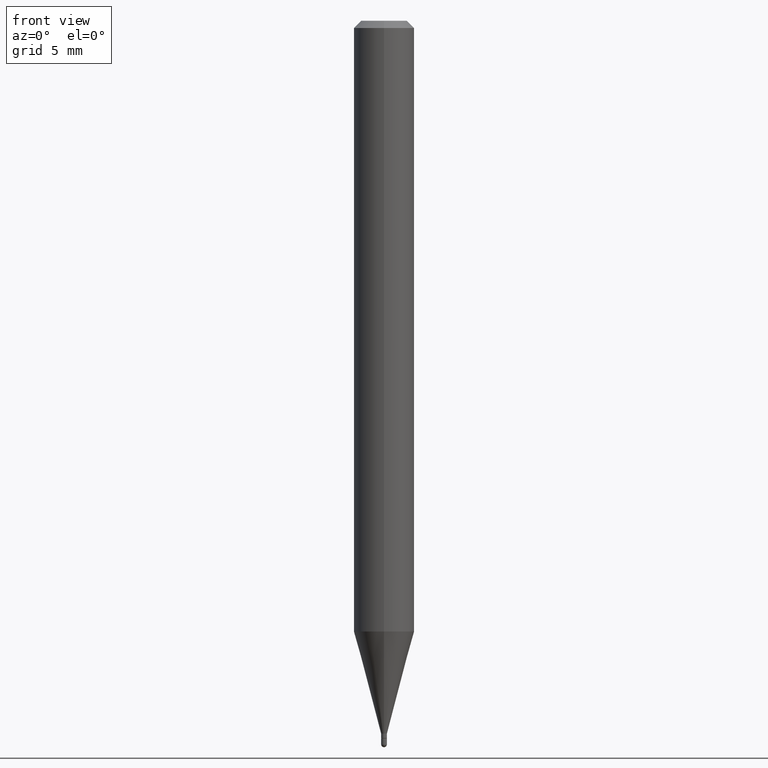
[diagram: clean part render]
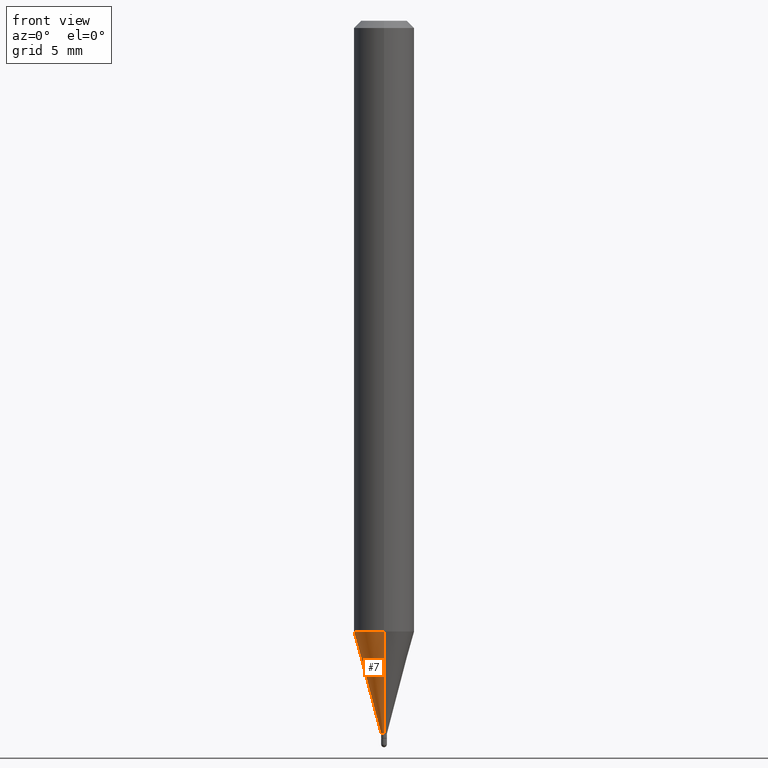
[diagram: same view with one face highlighted and labeled with its STEP entity id]
A machine part, front view. The second image highlights one B-rep face of the part: STEP entity #7.
In plain terms, the highlighted conical surface has half-angle 15 deg.
Its self-contained STEP definition (entity closure, byte-faithful):
#1 = LINE ( 'NONE', #194, #245 ) ;
#7 = ADVANCED_FACE ( 'NONE', ( #237 ), #114, .T. ) ;
#12 = CARTESIAN_POINT ( 'NONE',  ( 3.599709425658781561E-29, -5.139490112842336246E-15, -1.471999999999999975 ) ) ;
#13 = DIRECTION ( 'NONE',  ( -6.982962677686265922E-15, -1.000000000000000000, 0.000000000000000000 ) ) ;
#16 = CARTESIAN_POINT ( 'NONE',  ( -4.364351673553608545E-16, -0.06250000000000439926, -1.261139129372358614 ) ) ;
#26 = CIRCLE ( 'NONE', #76, 0.06250000000000000000 ) ;
#30 = DIRECTION ( 'NONE',  ( -6.982962677686265922E-15, -1.000000000000000000, 0.000000000000000000 ) ) ;
#32 = EDGE_LOOP ( 'NONE', ( #400, #493, #360, #157 ) ) ;
#40 = DIRECTION ( 'NONE',  ( 1.839019923739599921E-15, 0.2588190451025249028, 0.9659258262890670910 ) ) ;
#76 = AXIS2_PLACEMENT_3D ( 'NONE', #206, #339, #121 ) ;
#79 = CARTESIAN_POINT ( 'NONE',  ( 2.433608869978675634E-16, 0.005999999999994782944, -1.471999999999999975 ) ) ;
#106 = EDGE_CURVE ( 'NONE', #186, #337, #1, .T. ) ;
#114 = CONICAL_SURFACE ( 'NONE', #274, 0.005999999999999922930, 0.2617993877991502405 ) ;
#121 = DIRECTION ( 'NONE',  ( -6.982962677686265922E-15, -1.000000000000000000, 4.370956789862821150E-15 ) ) ;
#157 = ORIENTED_EDGE ( 'NONE', *, *, #299, .F. ) ;
#175 = EDGE_CURVE ( 'NONE', #268, #421, #280, .T. ) ;
#184 = DIRECTION ( 'NONE',  ( -2.445454772866020119E-29, 3.491501435354847556E-15, 1.000000000000000000 ) ) ;
#186 = VERTEX_POINT ( 'NONE', #332 ) ;
#194 = CARTESIAN_POINT ( 'NONE',  ( -4.189777606608106146E-17, -0.006000000000005062048, -1.471999999999999975 ) ) ;
#198 = DIRECTION ( 'NONE',  ( -1.807323732225329745E-15, -0.2588190451025181305, 0.9659258262890689783 ) ) ;
#206 = CARTESIAN_POINT ( 'NONE',  ( 3.084058703171732216E-29, -4.403269080385753403E-15, -1.261139129372358836 ) ) ;
#214 = CARTESIAN_POINT ( 'NONE',  ( 4.440892098500932831E-16, 0.06249999999999558686, -1.261139129372359058 ) ) ;
#218 = VECTOR ( 'NONE', #40, 39.37007874015748143 ) ;
#237 = FACE_OUTER_BOUND ( 'NONE', #32, .T. ) ;
#245 = VECTOR ( 'NONE', #198, 39.37007874015748143 ) ;
#268 = VERTEX_POINT ( 'NONE', #79 ) ;
#274 = AXIS2_PLACEMENT_3D ( 'NONE', #325, #184, #30 ) ;
#280 = LINE ( 'NONE', #323, #218 ) ;
#299 = EDGE_CURVE ( 'NONE', #421, #337, #26, .T. ) ;
#305 = AXIS2_PLACEMENT_3D ( 'NONE', #12, #368, #13 ) ;
#323 = CARTESIAN_POINT ( 'NONE',  ( 4.263256414564144915E-17, 0.005999999999994783811, -1.471999999999999975 ) ) ;
#325 = CARTESIAN_POINT ( 'NONE',  ( 3.599709425658781561E-29, -5.139490112842336246E-15, -1.471999999999999975 ) ) ;
#332 = CARTESIAN_POINT ( 'NONE',  ( -4.189777606608106146E-17, -0.006000000000005062048, -1.471999999999999975 ) ) ;
#337 = VERTEX_POINT ( 'NONE', #16 ) ;
#339 = DIRECTION ( 'NONE',  ( -2.445454772866020119E-29, 3.491501435354847556E-15, 1.000000000000000000 ) ) ;
#360 = ORIENTED_EDGE ( 'NONE', *, *, #106, .T. ) ;
#368 = DIRECTION ( 'NONE',  ( -2.445454772866020119E-29, 3.491501435354847556E-15, 1.000000000000000000 ) ) ;
#400 = ORIENTED_EDGE ( 'NONE', *, *, #175, .F. ) ;
#421 = VERTEX_POINT ( 'NONE', #214 ) ;
#424 = EDGE_CURVE ( 'NONE', #268, #186, #447, .T. ) ;
#447 = CIRCLE ( 'NONE', #305, 0.005999999999999922930 ) ;
#493 = ORIENTED_EDGE ( 'NONE', *, *, #424, .T. ) ;